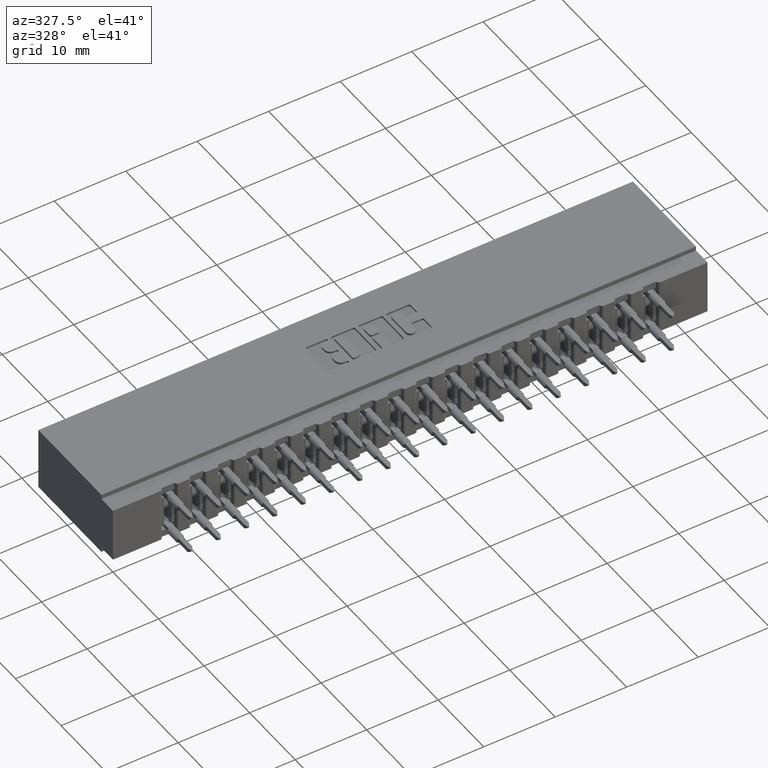
[diagram: clean part render]
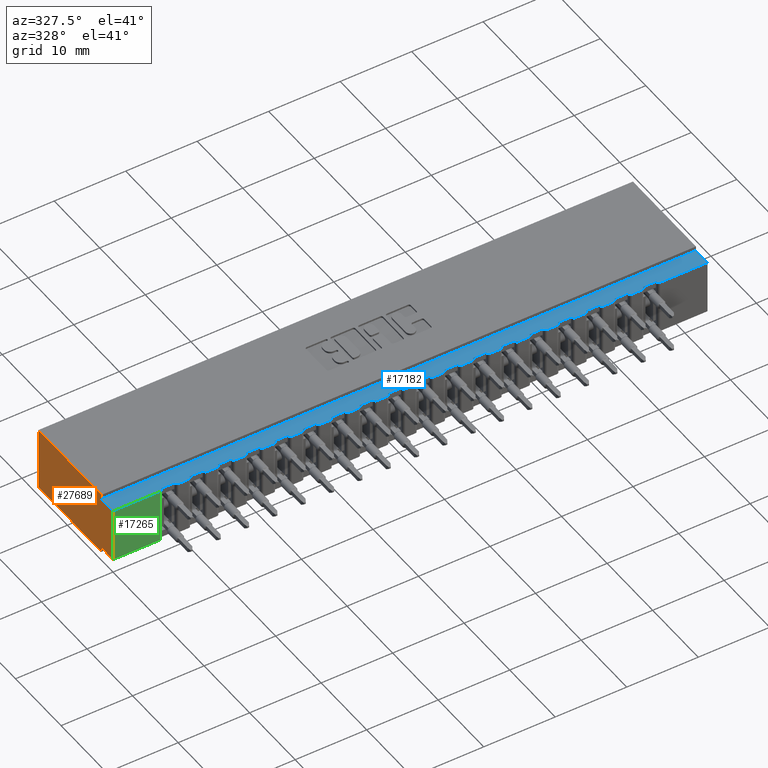
[diagram: same view with three faces highlighted in distinct colors, each labeled with its STEP entity id]
A machine part, auxiliary view with three faces highlighted in distinct colors.
Their STEP definitions:

[orange] entity #27689 — the highlighted planar face has unit normal (1, 0, 0).
#1000 = EDGE_CURVE ( 'NONE', #14101, #30119, #16599, .T. ) ;
#1789 = DIRECTION ( 'NONE',  ( -0.0000000000000000000, -1.000000000000000000, -0.0000000000000000000 ) ) ;
#2424 = LINE ( 'NONE', #31469, #23523 ) ;
#2465 = CARTESIAN_POINT ( 'NONE',  ( 0.0000000000000000000, 0.0000000000000000000, -0.02500000000000000486 ) ) ;
#2502 = DIRECTION ( 'NONE',  ( 0.0000000000000000000, 1.000000000000000000, 0.0000000000000000000 ) ) ;
#2623 = CARTESIAN_POINT ( 'NONE',  ( 0.0000000000000000000, 0.6449999999999999067, 0.0000000000000000000 ) ) ;
#3711 = ORIENTED_EDGE ( 'NONE', *, *, #24455, .F. ) ;
#3777 = ORIENTED_EDGE ( 'NONE', *, *, #1000, .F. ) ;
#5182 = AXIS2_PLACEMENT_3D ( 'NONE', #2623, #20771, #23678 ) ;
#6314 = EDGE_CURVE ( 'NONE', #21454, #13313, #2424, .T. ) ;
#6968 = EDGE_CURVE ( 'NONE', #21090, #12050, #25816, .T. ) ;
#6995 = VECTOR ( 'NONE', #9003, 39.37007874015748143 ) ;
#7760 = CARTESIAN_POINT ( 'NONE',  ( 0.0000000000000000000, 0.6449999999999999067, -0.3499999999999999778 ) ) ;
#7871 = CARTESIAN_POINT ( 'NONE',  ( 0.0000000000000000000, 0.0000000000000000000, -0.3249999999999999556 ) ) ;
#8502 = VECTOR ( 'NONE', #20936, 39.37007874015748143 ) ;
#9003 = DIRECTION ( 'NONE',  ( -0.0000000000000000000, -1.000000000000000000, -0.0000000000000000000 ) ) ;
#9988 = EDGE_CURVE ( 'NONE', #12050, #13313, #13017, .T. ) ;
#10243 = PLANE ( 'NONE',  #5182 ) ;
#10439 = DIRECTION ( 'NONE',  ( 0.0000000000000000000, 0.0000000000000000000, -1.000000000000000000 ) ) ;
#10880 = DIRECTION ( 'NONE',  ( -0.0000000000000000000, -0.0000000000000000000, 1.000000000000000000 ) ) ;
#10966 = DIRECTION ( 'NONE',  ( -0.0000000000000000000, -0.0000000000000000000, -1.000000000000000000 ) ) ;
#12050 = VERTEX_POINT ( 'NONE', #23248 ) ;
#12130 = LINE ( 'NONE', #17112, #6995 ) ;
#12135 = CARTESIAN_POINT ( 'NONE',  ( 0.0000000000000000000, 0.6449999999999999067, 0.0000000000000000000 ) ) ;
#13000 = LINE ( 'NONE', #34097, #8502 ) ;
#13017 = LINE ( 'NONE', #2465, #22253 ) ;
#13313 = VERTEX_POINT ( 'NONE', #32850 ) ;
#13344 = CARTESIAN_POINT ( 'NONE',  ( 0.0000000000000000000, 0.0000000000000000000, -0.3249999999999999556 ) ) ;
#13844 = CARTESIAN_POINT ( 'NONE',  ( 0.0000000000000000000, 0.6449999999999999067, 0.0000000000000000000 ) ) ;
#14101 = VERTEX_POINT ( 'NONE', #7760 ) ;
#14798 = ORIENTED_EDGE ( 'NONE', *, *, #6968, .F. ) ;
#15091 = CARTESIAN_POINT ( 'NONE',  ( 0.0000000000000000000, 0.1000000000000000056, 0.0000000000000000000 ) ) ;
#16599 = LINE ( 'NONE', #13844, #32256 ) ;
#16754 = ORIENTED_EDGE ( 'NONE', *, *, #22343, .F. ) ;
#17112 = CARTESIAN_POINT ( 'NONE',  ( 0.0000000000000000000, 0.6449999999999999067, 0.0000000000000000000 ) ) ;
#17156 = CARTESIAN_POINT ( 'NONE',  ( 0.0000000000000000000, 0.1000000000000000056, -0.3249999999999999556 ) ) ;
#17466 = EDGE_LOOP ( 'NONE', ( #28972, #22732, #14798, #26044, #3777, #19995, #16754, #3711 ) ) ;
#19657 = EDGE_CURVE ( 'NONE', #30119, #21090, #12130, .T. ) ;
#19995 = ORIENTED_EDGE ( 'NONE', *, *, #25996, .T. ) ;
#20771 = DIRECTION ( 'NONE',  ( 1.000000000000000000, -0.0000000000000000000, 0.0000000000000000000 ) ) ;
#20936 = DIRECTION ( 'NONE',  ( -0.0000000000000000000, -1.000000000000000000, -0.0000000000000000000 ) ) ;
#21090 = VERTEX_POINT ( 'NONE', #32409 ) ;
#21454 = VERTEX_POINT ( 'NONE', #13344 ) ;
#21798 = VERTEX_POINT ( 'NONE', #23157 ) ;
#22253 = VECTOR ( 'NONE', #1789, 39.37007874015748143 ) ;
#22343 = EDGE_CURVE ( 'NONE', #24753, #21798, #27854, .T. ) ;
#22732 = ORIENTED_EDGE ( 'NONE', *, *, #9988, .F. ) ;
#23157 = CARTESIAN_POINT ( 'NONE',  ( 0.0000000000000000000, 0.1000000000000000056, -0.3499999999999999778 ) ) ;
#23248 = CARTESIAN_POINT ( 'NONE',  ( 0.0000000000000000000, 0.1000000000000000056, -0.02500000000000000486 ) ) ;
#23336 = FACE_OUTER_BOUND ( 'NONE', #17466, .T. ) ;
#23454 = CARTESIAN_POINT ( 'NONE',  ( 0.0000000000000000000, 0.1000000000000000056, -0.3499999999999999778 ) ) ;
#23523 = VECTOR ( 'NONE', #10880, 39.37007874015748143 ) ;
#23678 = DIRECTION ( 'NONE',  ( 0.0000000000000000000, 0.0000000000000000000, -1.000000000000000000 ) ) ;
#23862 = VECTOR ( 'NONE', #2502, 39.37007874015748143 ) ;
#24455 = EDGE_CURVE ( 'NONE', #21454, #24753, #26166, .T. ) ;
#24753 = VERTEX_POINT ( 'NONE', #17156 ) ;
#25816 = LINE ( 'NONE', #15091, #32936 ) ;
#25996 = EDGE_CURVE ( 'NONE', #14101, #21798, #13000, .T. ) ;
#26044 = ORIENTED_EDGE ( 'NONE', *, *, #19657, .F. ) ;
#26166 = LINE ( 'NONE', #7871, #23862 ) ;
#27689 = ADVANCED_FACE ( 'NONE', ( #23336 ), #10243, .F. ) ;
#27854 = LINE ( 'NONE', #23454, #28208 ) ;
#28208 = VECTOR ( 'NONE', #10966, 39.37007874015748143 ) ;
#28972 = ORIENTED_EDGE ( 'NONE', *, *, #6314, .T. ) ;
#29930 = DIRECTION ( 'NONE',  ( -0.0000000000000000000, -0.0000000000000000000, 1.000000000000000000 ) ) ;
#30119 = VERTEX_POINT ( 'NONE', #12135 ) ;
#31469 = CARTESIAN_POINT ( 'NONE',  ( 0.0000000000000000000, 0.0000000000000000000, 0.0000000000000000000 ) ) ;
#32256 = VECTOR ( 'NONE', #29930, 39.37007874015748143 ) ;
#32409 = CARTESIAN_POINT ( 'NONE',  ( 0.0000000000000000000, 0.1000000000000000056, 0.0000000000000000000 ) ) ;
#32850 = CARTESIAN_POINT ( 'NONE',  ( 0.0000000000000000000, 0.0000000000000000000, -0.02500000000000000486 ) ) ;
#32936 = VECTOR ( 'NONE', #10439, 39.37007874015748143 ) ;
#34097 = CARTESIAN_POINT ( 'NONE',  ( 0.0000000000000000000, 0.6449999999999999067, -0.3499999999999999778 ) ) ;

[blue] entity #17182 — the highlighted planar face has unit normal (0, 0, -1).
#12 = CARTESIAN_POINT ( 'NONE',  ( 1.594999999999999751, 0.01499999999999997689, -0.02500000000000000486 ) ) ;
#64 = CARTESIAN_POINT ( 'NONE',  ( 0.5180000000000000160, 0.0000000000000000000, -0.02500000000000000486 ) ) ;
#84 = ORIENTED_EDGE ( 'NONE', *, *, #33243, .F. ) ;
#131 = DIRECTION ( 'NONE',  ( -1.000000000000000000, -0.0000000000000000000, -0.0000000000000000000 ) ) ;
#170 = EDGE_CURVE ( 'NONE', #24745, #10172, #32993, .T. ) ;
#191 = VERTEX_POINT ( 'NONE', #3565 ) ;
#264 = DIRECTION ( 'NONE',  ( 1.000000000000000000, 0.0000000000000000000, 0.0000000000000000000 ) ) ;
#299 = VERTEX_POINT ( 'NONE', #4767 ) ;
#342 = AXIS2_PLACEMENT_3D ( 'NONE', #18507, #34099, #18187 ) ;
#368 = VERTEX_POINT ( 'NONE', #27934 ) ;
#379 = CARTESIAN_POINT ( 'NONE',  ( 1.990999999999999881, 0.01499999999999997689, -0.02500000000000000486 ) ) ;
#413 = EDGE_CURVE ( 'NONE', #21575, #32062, #5445, .T. ) ;
#446 = EDGE_CURVE ( 'NONE', #29357, #12050, #31890, .T. ) ;
#569 = DIRECTION ( 'NONE',  ( 0.0000000000000000000, -0.0000000000000000000, -1.000000000000000000 ) ) ;
#699 = DIRECTION ( 'NONE',  ( 0.0000000000000000000, -0.0000000000000000000, -1.000000000000000000 ) ) ;
#701 = CARTESIAN_POINT ( 'NONE',  ( 1.210999999999999854, 0.01499999999999997689, -0.02500000000000000486 ) ) ;
#765 = VECTOR ( 'NONE', #33686, 39.37007874015748143 ) ;
#794 = ORIENTED_EDGE ( 'NONE', *, *, #11910, .T. ) ;
#807 = LINE ( 'NONE', #15861, #8779 ) ;
#869 = CARTESIAN_POINT ( 'NONE',  ( 0.2899999999999999800, 0.01499999999999999424, -0.02499999999999982445 ) ) ;
#874 = AXIS2_PLACEMENT_3D ( 'NONE', #16246, #18066, #27133 ) ;
#899 = LINE ( 'NONE', #14029, #9289 ) ;
#927 = AXIS2_PLACEMENT_3D ( 'NONE', #16047, #24172, #3266 ) ;
#944 = CARTESIAN_POINT ( 'NONE',  ( 1.141999999999999904, 0.0000000000000000000, -0.02500000000000000486 ) ) ;
#976 = DIRECTION ( 'NONE',  ( 0.0000000000000000000, -0.0000000000000000000, -1.000000000000000000 ) ) ;
#984 = LINE ( 'NONE', #14456, #12099 ) ;
#1086 = ORIENTED_EDGE ( 'NONE', *, *, #19897, .F. ) ;
#1100 = LINE ( 'NONE', #16639, #32057 ) ;
#1117 = ORIENTED_EDGE ( 'NONE', *, *, #18322, .T. ) ;
#1210 = CARTESIAN_POINT ( 'NONE',  ( 1.819999999999999618, 0.01499999999999997689, -0.02500000000000000486 ) ) ;
#1282 = CARTESIAN_POINT ( 'NONE',  ( 1.225999999999999979, 0.01499999999999999424, -0.02499999999999982445 ) ) ;
#1332 = VERTEX_POINT ( 'NONE', #11364 ) ;
#1354 = VECTOR ( 'NONE', #2470, 39.37007874015748143 ) ;
#1376 = DIRECTION ( 'NONE',  ( 0.0000000000000000000, -0.0000000000000000000, -1.000000000000000000 ) ) ;
#1390 = LINE ( 'NONE', #25237, #19111 ) ;
#1401 = EDGE_CURVE ( 'NONE', #4861, #19997, #32288, .T. ) ;
#1415 = DIRECTION ( 'NONE',  ( 1.000000000000000000, 0.0000000000000000000, 0.0000000000000000000 ) ) ;
#1573 = CARTESIAN_POINT ( 'NONE',  ( 0.6590000000000000302, 0.01499999999999997689, -0.02500000000000000486 ) ) ;
#1619 = CARTESIAN_POINT ( 'NONE',  ( 2.546000000000000263, 0.01499999999999997689, -0.02500000000000000486 ) ) ;
#1697 = DIRECTION ( 'NONE',  ( 1.000000000000000000, -0.0000000000000000000, -2.307304048702925122E-16 ) ) ;
#1787 = ORIENTED_EDGE ( 'NONE', *, *, #20901, .T. ) ;
#1789 = DIRECTION ( 'NONE',  ( -0.0000000000000000000, -1.000000000000000000, -0.0000000000000000000 ) ) ;
#1929 = CIRCLE ( 'NONE', #20652, 0.01499999999999997689 ) ;
#2071 = DIRECTION ( 'NONE',  ( 1.000000000000000000, 0.0000000000000000000, 0.0000000000000000000 ) ) ;
#2114 = ORIENTED_EDGE ( 'NONE', *, *, #30322, .F. ) ;
#2128 = EDGE_CURVE ( 'NONE', #21459, #3369, #32220, .T. ) ;
#2169 = DIRECTION ( 'NONE',  ( -0.0000000000000000000, 0.0000000000000000000, 1.000000000000000000 ) ) ;
#2232 = LINE ( 'NONE', #21036, #765 ) ;
#2250 = VERTEX_POINT ( 'NONE', #944 ) ;
#2299 = EDGE_CURVE ( 'NONE', #7115, #4963, #9427, .T. ) ;
#2358 = ORIENTED_EDGE ( 'NONE', *, *, #21048, .T. ) ;
#2399 = ORIENTED_EDGE ( 'NONE', *, *, #8854, .F. ) ;
#2465 = CARTESIAN_POINT ( 'NONE',  ( 0.0000000000000000000, 0.0000000000000000000, -0.02500000000000000486 ) ) ;
#2470 = DIRECTION ( 'NONE',  ( 1.000000000000000000, -0.0000000000000000000, -2.307304048702925122E-16 ) ) ;
#2488 = AXIS2_PLACEMENT_3D ( 'NONE', #19458, #976, #6340 ) ;
#2508 = LINE ( 'NONE', #13213, #27121 ) ;
#2517 = VERTEX_POINT ( 'NONE', #31683 ) ;
#2671 = VERTEX_POINT ( 'NONE', #9858 ) ;
#2973 = ORIENTED_EDGE ( 'NONE', *, *, #21261, .T. ) ;
#2979 = ORIENTED_EDGE ( 'NONE', *, *, #30643, .F. ) ;
#3104 = EDGE_CURVE ( 'NONE', #20784, #13853, #21826, .T. ) ;
#3136 = AXIS2_PLACEMENT_3D ( 'NONE', #30924, #15690, #2071 ) ;
#3209 = EDGE_CURVE ( 'NONE', #5363, #7830, #10482, .T. ) ;
#3238 = VERTEX_POINT ( 'NONE', #26192 ) ;
#3247 = EDGE_CURVE ( 'NONE', #18712, #14506, #17457, .T. ) ;
#3266 = DIRECTION ( 'NONE',  ( 1.000000000000000000, 0.0000000000000000000, 0.0000000000000000000 ) ) ;
#3333 = EDGE_CURVE ( 'NONE', #32667, #3238, #16486, .T. ) ;
#3365 = CARTESIAN_POINT ( 'NONE',  ( 2.858000000000000096, 0.0000000000000000000, -0.02500000000000000486 ) ) ;
#3369 = VERTEX_POINT ( 'NONE', #17015 ) ;
#3430 = EDGE_CURVE ( 'NONE', #21278, #8784, #9789, .T. ) ;
#3540 = CARTESIAN_POINT ( 'NONE',  ( 2.287999999999999812, 0.01499999999999997689, -0.02500000000000000486 ) ) ;
#3565 = CARTESIAN_POINT ( 'NONE',  ( 2.770999999999999908, 0.01499999999999997689, -0.02500000000000000486 ) ) ;
#3588 = ORIENTED_EDGE ( 'NONE', *, *, #3209, .F. ) ;
#3640 = AXIS2_PLACEMENT_3D ( 'NONE', #14974, #33491, #14643 ) ;
#3674 = VERTEX_POINT ( 'NONE', #26835 ) ;
#3735 = EDGE_CURVE ( 'NONE', #15691, #7068, #8219, .T. ) ;
#3795 = CARTESIAN_POINT ( 'NONE',  ( 1.834999999999999742, 0.01499999999999997689, -0.02500000000000000486 ) ) ;
#3820 = ORIENTED_EDGE ( 'NONE', *, *, #9959, .T. ) ;
#3858 = VERTEX_POINT ( 'NONE', #15890 ) ;
#3895 = EDGE_CURVE ( 'NONE', #29357, #7502, #13457, .T. ) ;
#3897 = VERTEX_POINT ( 'NONE', #5677 ) ;
#3915 = VERTEX_POINT ( 'NONE', #23816 ) ;
#4041 = DIRECTION ( 'NONE',  ( -1.000000000000000000, -0.0000000000000000000, -0.0000000000000000000 ) ) ;
#4051 = DIRECTION ( 'NONE',  ( 1.000000000000000000, -0.0000000000000000000, -2.307304048702925122E-16 ) ) ;
#4066 = DIRECTION ( 'NONE',  ( -0.0000000000000000000, 0.0000000000000000000, 1.000000000000000000 ) ) ;
#4134 = CARTESIAN_POINT ( 'NONE',  ( 0.8989999999999999103, 0.01499999999999997689, -0.02500000000000000486 ) ) ;
#4142 = CARTESIAN_POINT ( 'NONE',  ( 0.7429999999999999938, 0.01499999999999997689, -0.02500000000000000486 ) ) ;
#4192 = CARTESIAN_POINT ( 'NONE',  ( 2.146999999999999797, 0.01499999999999997689, -0.02500000000000000486 ) ) ;
#4290 = ORIENTED_EDGE ( 'NONE', *, *, #13680, .F. ) ;
#4401 = DIRECTION ( 'NONE',  ( -0.0000000000000000000, 0.0000000000000000000, 1.000000000000000000 ) ) ;
#4416 = VECTOR ( 'NONE', #4051, 39.37007874015748143 ) ;
#4437 = VECTOR ( 'NONE', #15444, 39.37007874015748143 ) ;
#4660 = AXIS2_PLACEMENT_3D ( 'NONE', #9348, #1376, #25225 ) ;
#4767 = CARTESIAN_POINT ( 'NONE',  ( 1.522999999999999909, 0.01499999999999997689, -0.02500000000000000486 ) ) ;
#4808 = ORIENTED_EDGE ( 'NONE', *, *, #12865, .F. ) ;
#4861 = VERTEX_POINT ( 'NONE', #29976 ) ;
#4897 = CARTESIAN_POINT ( 'NONE',  ( 0.6019999999999998685, 0.01499999999999999424, -0.02499999999999982445 ) ) ;
#4963 = VERTEX_POINT ( 'NONE', #30163 ) ;
#4964 = LINE ( 'NONE', #20352, #21316 ) ;
#4969 = EDGE_CURVE ( 'NONE', #10516, #23368, #16937, .T. ) ;
#4984 = CARTESIAN_POINT ( 'NONE',  ( 3.274000000000000021, 0.0000000000000000000, -0.02500000000000000486 ) ) ;
#5062 = CARTESIAN_POINT ( 'NONE',  ( 2.785999999999999588, 0.01499999999999999424, -0.02499999999999982445 ) ) ;
#5121 = DIRECTION ( 'NONE',  ( 1.000000000000000000, 0.0000000000000000000, 0.0000000000000000000 ) ) ;
#5178 = CARTESIAN_POINT ( 'NONE',  ( 3.274000000000000021, 0.0000000000000000000, -0.02500000000000000486 ) ) ;
#5238 = EDGE_CURVE ( 'NONE', #21278, #13313, #899, .T. ) ;
#5249 = CARTESIAN_POINT ( 'NONE',  ( 1.678999999999999826, 0.01499999999999997689, -0.02500000000000000486 ) ) ;
#5278 = DIRECTION ( 'NONE',  ( 1.000000000000000000, 0.0000000000000000000, 0.0000000000000000000 ) ) ;
#5306 = CARTESIAN_POINT ( 'NONE',  ( 0.7579999999999998961, 0.01499999999999999424, -0.02499999999999982445 ) ) ;
#5347 = VERTEX_POINT ( 'NONE', #19384 ) ;
#5363 = VERTEX_POINT ( 'NONE', #11625 ) ;
#5370 = CARTESIAN_POINT ( 'NONE',  ( 3.274000000000000021, 0.0000000000000000000, -0.02500000000000000486 ) ) ;
#5445 = LINE ( 'NONE', #28946, #16749 ) ;
#5558 = EDGE_CURVE ( 'NONE', #7830, #22227, #16969, .T. ) ;
#5677 = CARTESIAN_POINT ( 'NONE',  ( 2.842999999999999527, 0.01499999999999997689, -0.02500000000000000486 ) ) ;
#5723 = CARTESIAN_POINT ( 'NONE',  ( 0.4459999999999999520, 0.01499999999999999424, -0.02499999999999982445 ) ) ;
#5768 = DIRECTION ( 'NONE',  ( 1.000000000000000000, -0.0000000000000000000, -2.307304048702925122E-16 ) ) ;
#5879 = EDGE_CURVE ( 'NONE', #22910, #33691, #6603, .T. ) ;
#6109 = DIRECTION ( 'NONE',  ( 1.000000000000000000, 0.0000000000000000000, 0.0000000000000000000 ) ) ;
#6220 = DIRECTION ( 'NONE',  ( -0.0000000000000000000, 0.0000000000000000000, 1.000000000000000000 ) ) ;
#6262 = DIRECTION ( 'NONE',  ( 1.000000000000000000, 0.0000000000000000000, 0.0000000000000000000 ) ) ;
#6281 = AXIS2_PLACEMENT_3D ( 'NONE', #18397, #28951, #5278 ) ;
#6340 = DIRECTION ( 'NONE',  ( 1.000000000000000000, 0.0000000000000000000, 0.0000000000000000000 ) ) ;
#6442 = CARTESIAN_POINT ( 'NONE',  ( 0.4160000000000000364, 0.0000000000000000000, -0.02500000000000000486 ) ) ;
#6492 = DIRECTION ( 'NONE',  ( 1.000000000000000000, 0.0000000000000000000, 0.0000000000000000000 ) ) ;
#6535 = CARTESIAN_POINT ( 'NONE',  ( 3.014000000000000234, 0.0000000000000000000, -0.02500000000000000486 ) ) ;
#6549 = VECTOR ( 'NONE', #20615, 39.37007874015748143 ) ;
#6580 = VERTEX_POINT ( 'NONE', #22939 ) ;
#6603 = CIRCLE ( 'NONE', #29195, 0.01499999999999997689 ) ;
#6672 = EDGE_CURVE ( 'NONE', #12551, #2671, #33838, .T. ) ;
#6776 = CARTESIAN_POINT ( 'NONE',  ( 1.819999999999999618, 0.0000000000000000000, -0.02500000000000000486 ) ) ;
#6884 = LINE ( 'NONE', #25364, #10220 ) ;
#6935 = VERTEX_POINT ( 'NONE', #34118 ) ;
#6948 = VECTOR ( 'NONE', #12710, 39.37007874015748143 ) ;
#7068 = VERTEX_POINT ( 'NONE', #29402 ) ;
#7115 = VERTEX_POINT ( 'NONE', #701 ) ;
#7189 = ORIENTED_EDGE ( 'NONE', *, *, #15357, .T. ) ;
#7292 = VERTEX_POINT ( 'NONE', #6776 ) ;
#7315 = CIRCLE ( 'NONE', #11721, 0.01499999999999997689 ) ;
#7345 = PLANE ( 'NONE',  #32310 ) ;
#7350 = CARTESIAN_POINT ( 'NONE',  ( 2.443999999999999950, 0.01499999999999997689, -0.02500000000000000486 ) ) ;
#7452 = CARTESIAN_POINT ( 'NONE',  ( 2.233999999999999542, 0.01499999999999997689, -0.02500000000000000486 ) ) ;
#7502 = VERTEX_POINT ( 'NONE', #5370 ) ;
#7549 = VECTOR ( 'NONE', #11952, 39.37007874015748143 ) ;
#7553 = CARTESIAN_POINT ( 'NONE',  ( 2.302999999999999936, 0.01499999999999997689, -0.02500000000000000486 ) ) ;
#7561 = VECTOR ( 'NONE', #19096, 39.37007874015748143 ) ;
#7657 = DIRECTION ( 'NONE',  ( 0.0000000000000000000, -0.0000000000000000000, -1.000000000000000000 ) ) ;
#7775 = VERTEX_POINT ( 'NONE', #4134 ) ;
#7830 = VERTEX_POINT ( 'NONE', #27779 ) ;
#7912 = CARTESIAN_POINT ( 'NONE',  ( 2.701999999999999957, 0.01499999999999997689, -0.02500000000000000486 ) ) ;
#7954 = ORIENTED_EDGE ( 'NONE', *, *, #11338, .T. ) ;
#8046 = EDGE_CURVE ( 'NONE', #20784, #10516, #2508, .T. ) ;
#8050 = CARTESIAN_POINT ( 'NONE',  ( 2.131999999999999673, 0.0000000000000000000, -0.02500000000000000486 ) ) ;
#8124 = ORIENTED_EDGE ( 'NONE', *, *, #22488, .F. ) ;
#8161 = ORIENTED_EDGE ( 'NONE', *, *, #18619, .T. ) ;
#8219 = CIRCLE ( 'NONE', #23656, 0.01499999999999997689 ) ;
#8247 = LINE ( 'NONE', #5306, #15161 ) ;
#8291 = ORIENTED_EDGE ( 'NONE', *, *, #17214, .F. ) ;
#8322 = ORIENTED_EDGE ( 'NONE', *, *, #32722, .T. ) ;
#8413 = DIRECTION ( 'NONE',  ( -0.0000000000000000000, 0.0000000000000000000, 1.000000000000000000 ) ) ;
#8419 = CIRCLE ( 'NONE', #24408, 0.01499999999999997689 ) ;
#8486 = EDGE_CURVE ( 'NONE', #11146, #1332, #14210, .T. ) ;
#8500 = CIRCLE ( 'NONE', #27804, 0.01499999999999970281 ) ;
#8569 = CARTESIAN_POINT ( 'NONE',  ( 3.274000000000000021, 0.0000000000000000000, -0.02500000000000000486 ) ) ;
#8621 = EDGE_CURVE ( 'NONE', #17320, #1332, #7315, .T. ) ;
#8626 = EDGE_CURVE ( 'NONE', #17058, #6935, #26604, .T. ) ;
#8704 = DIRECTION ( 'NONE',  ( 1.000000000000000000, -0.0000000000000000000, -2.307304048702925122E-16 ) ) ;
#8779 = VECTOR ( 'NONE', #131, 39.37007874015748143 ) ;
#8784 = VERTEX_POINT ( 'NONE', #20754 ) ;
#8835 = DIRECTION ( 'NONE',  ( 1.000000000000000000, -0.0000000000000000000, -2.307304048702925122E-16 ) ) ;
#8854 = EDGE_CURVE ( 'NONE', #2517, #12118, #16672, .T. ) ;
#9013 = AXIS2_PLACEMENT_3D ( 'NONE', #23942, #8413, #29314 ) ;
#9060 = VECTOR ( 'NONE', #33983, 39.37007874015748143 ) ;
#9181 = VERTEX_POINT ( 'NONE', #17758 ) ;
#9203 = CIRCLE ( 'NONE', #342, 0.01499999999999997689 ) ;
#9216 = CIRCLE ( 'NONE', #927, 0.01499999999999997689 ) ;
#9289 = VECTOR ( 'NONE', #13845, 39.37007874015748143 ) ;
#9291 = ORIENTED_EDGE ( 'NONE', *, *, #20400, .F. ) ;
#9348 = CARTESIAN_POINT ( 'NONE',  ( 1.453999999999999737, 0.01499999999999997689, -0.02500000000000000486 ) ) ;
#9421 = DIRECTION ( 'NONE',  ( -1.000000000000000000, -0.0000000000000000000, -0.0000000000000000000 ) ) ;
#9423 = EDGE_CURVE ( 'NONE', #13777, #7775, #13971, .T. ) ;
#9427 = LINE ( 'NONE', #1282, #27373 ) ;
#9564 = CARTESIAN_POINT ( 'NONE',  ( 3.274000000000000021, 0.0000000000000000000, -0.02500000000000000486 ) ) ;
#9595 = DIRECTION ( 'NONE',  ( 1.000000000000000000, -0.0000000000000000000, -2.307304048702925122E-16 ) ) ;
#9600 = LINE ( 'NONE', #9939, #15163 ) ;
#9601 = DIRECTION ( 'NONE',  ( -0.0000000000000000000, 0.0000000000000000000, 1.000000000000000000 ) ) ;
#9705 = ORIENTED_EDGE ( 'NONE', *, *, #17339, .F. ) ;
#9762 = DIRECTION ( 'NONE',  ( 1.000000000000000000, -0.0000000000000000000, -2.307304048702925122E-16 ) ) ;
#9786 = CARTESIAN_POINT ( 'NONE',  ( 3.274000000000000021, 0.0000000000000000000, -0.02500000000000000486 ) ) ;
#9789 = CIRCLE ( 'NONE', #16936, 0.01499999999999997689 ) ;
#9858 = CARTESIAN_POINT ( 'NONE',  ( 1.750999999999999890, 0.01499999999999997689, -0.02500000000000000486 ) ) ;
#9909 = LINE ( 'NONE', #9564, #18554 ) ;
#9937 = CARTESIAN_POINT ( 'NONE',  ( 0.9140000000000000346, 0.01499999999999999424, -0.02499999999999982445 ) ) ;
#9939 = CARTESIAN_POINT ( 'NONE',  ( 3.274000000000000021, 0.0000000000000000000, -0.02500000000000000486 ) ) ;
#9945 = CARTESIAN_POINT ( 'NONE',  ( 3.274000000000000021, 0.0000000000000000000, -0.02500000000000000486 ) ) ;
#9959 = EDGE_CURVE ( 'NONE', #19908, #13308, #28736, .T. ) ;
#9960 = LINE ( 'NONE', #31390, #11274 ) ;
#9988 = EDGE_CURVE ( 'NONE', #12050, #13313, #13017, .T. ) ;
#9993 = VECTOR ( 'NONE', #9421, 39.37007874015748143 ) ;
#10172 = VERTEX_POINT ( 'NONE', #379 ) ;
#10220 = VECTOR ( 'NONE', #1697, 39.37007874015748143 ) ;
#10251 = CIRCLE ( 'NONE', #18514, 0.01499999999999970281 ) ;
#10344 = DIRECTION ( 'NONE',  ( 1.000000000000000000, 0.0000000000000000000, 0.0000000000000000000 ) ) ;
#10375 = AXIS2_PLACEMENT_3D ( 'NONE', #16507, #24288, #32770 ) ;
#10482 = LINE ( 'NONE', #33811, #30183 ) ;
#10503 = AXIS2_PLACEMENT_3D ( 'NONE', #15104, #4401, #25644 ) ;
#10516 = VERTEX_POINT ( 'NONE', #15845 ) ;
#10630 = AXIS2_PLACEMENT_3D ( 'NONE', #15242, #7657, #33908 ) ;
#10700 = CARTESIAN_POINT ( 'NONE',  ( 3.274000000000000021, 0.0000000000000000000, -0.02500000000000000486 ) ) ;
#10814 = DIRECTION ( 'NONE',  ( -1.000000000000000000, -0.0000000000000000000, -0.0000000000000000000 ) ) ;
#10843 = EDGE_CURVE ( 'NONE', #13853, #32125, #9960, .T. ) ;
#10853 = CARTESIAN_POINT ( 'NONE',  ( 1.439000000000000057, 0.01499999999999997689, -0.02500000000000000486 ) ) ;
#10888 = DIRECTION ( 'NONE',  ( 1.000000000000000000, 0.0000000000000000000, 0.0000000000000000000 ) ) ;
#10976 = DIRECTION ( 'NONE',  ( -0.0000000000000000000, 0.0000000000000000000, 1.000000000000000000 ) ) ;
#11146 = VERTEX_POINT ( 'NONE', #14249 ) ;
#11263 = DIRECTION ( 'NONE',  ( 1.000000000000000000, 0.0000000000000000000, 0.0000000000000000000 ) ) ;
#11274 = VECTOR ( 'NONE', #12719, 39.37007874015748143 ) ;
#11279 = CARTESIAN_POINT ( 'NONE',  ( 2.459000000000000075, 0.01499999999999997689, -0.02500000000000000486 ) ) ;
#11338 = EDGE_CURVE ( 'NONE', #191, #3897, #28741, .T. ) ;
#11364 = CARTESIAN_POINT ( 'NONE',  ( 0.5030000000000000027, 0.01499999999999997689, -0.02500000000000000486 ) ) ;
#11375 = CARTESIAN_POINT ( 'NONE',  ( 2.755999999999999783, 0.0000000000000000000, -0.02500000000000000486 ) ) ;
#11418 = DIRECTION ( 'NONE',  ( 1.000000000000000000, 0.0000000000000000000, 0.0000000000000000000 ) ) ;
#11427 = CARTESIAN_POINT ( 'NONE',  ( 2.941999999999999726, 0.01499999999999999424, -0.02499999999999982445 ) ) ;
#11443 = CARTESIAN_POINT ( 'NONE',  ( 0.7279999999999999805, 0.01499999999999997689, -0.02500000000000000486 ) ) ;
#11512 = DIRECTION ( 'NONE',  ( -0.0000000000000000000, 0.0000000000000000000, 1.000000000000000000 ) ) ;
#11561 = ORIENTED_EDGE ( 'NONE', *, *, #10843, .T. ) ;
#11625 = CARTESIAN_POINT ( 'NONE',  ( 2.443999999999999950, 0.0000000000000000000, -0.02500000000000000486 ) ) ;
#11721 = AXIS2_PLACEMENT_3D ( 'NONE', #24374, #699, #11263 ) ;
#11753 = ORIENTED_EDGE ( 'NONE', *, *, #19643, .T. ) ;
#11758 = ORIENTED_EDGE ( 'NONE', *, *, #19068, .F. ) ;
#11793 = CIRCLE ( 'NONE', #6281, 0.01499999999999970281 ) ;
#11910 = EDGE_CURVE ( 'NONE', #17832, #3674, #13482, .T. ) ;
#11952 = DIRECTION ( 'NONE',  ( -1.000000000000000000, -0.0000000000000000000, -0.0000000000000000000 ) ) ;
#11956 = ORIENTED_EDGE ( 'NONE', *, *, #31623, .F. ) ;
#12009 = CIRCLE ( 'NONE', #3136, 0.01499999999999970281 ) ;
#12038 = ORIENTED_EDGE ( 'NONE', *, *, #9423, .T. ) ;
#12050 = VERTEX_POINT ( 'NONE', #23248 ) ;
#12064 = CARTESIAN_POINT ( 'NONE',  ( 0.3619999999999999885, 0.01499999999999997689, -0.02500000000000000486 ) ) ;
#12079 = ORIENTED_EDGE ( 'NONE', *, *, #13237, .F. ) ;
#12082 = EDGE_CURVE ( 'NONE', #16292, #17060, #20671, .T. ) ;
#12099 = VECTOR ( 'NONE', #14131, 39.37007874015748143 ) ;
#12113 = ORIENTED_EDGE ( 'NONE', *, *, #25754, .T. ) ;
#12118 = VERTEX_POINT ( 'NONE', #13388 ) ;
#12354 = DIRECTION ( 'NONE',  ( 1.000000000000000000, 0.0000000000000000000, 0.0000000000000000000 ) ) ;
#12360 = VECTOR ( 'NONE', #8704, 39.37007874015748143 ) ;
#12515 = CARTESIAN_POINT ( 'NONE',  ( 1.975999999999999979, 0.0000000000000000000, -0.02500000000000000486 ) ) ;
#12536 = ORIENTED_EDGE ( 'NONE', *, *, #29103, .T. ) ;
#12546 = DIRECTION ( 'NONE',  ( -1.000000000000000000, 0.0000000000000000000, -0.0000000000000000000 ) ) ;
#12551 = VERTEX_POINT ( 'NONE', #5249 ) ;
#12698 = LINE ( 'NONE', #9937, #4437 ) ;
#12710 = DIRECTION ( 'NONE',  ( -1.000000000000000000, -0.0000000000000000000, -0.0000000000000000000 ) ) ;
#12719 = DIRECTION ( 'NONE',  ( 1.000000000000000000, -0.0000000000000000000, -2.307304048702925122E-16 ) ) ;
#12808 = CARTESIAN_POINT ( 'NONE',  ( 0.5719999999999999529, 0.01499999999999997689, -0.02500000000000000486 ) ) ;
#12865 = EDGE_CURVE ( 'NONE', #22920, #22910, #9909, .T. ) ;
#12937 = DIRECTION ( 'NONE',  ( 0.0000000000000000000, -0.0000000000000000000, -1.000000000000000000 ) ) ;
#13017 = LINE ( 'NONE', #2465, #22253 ) ;
#13024 = EDGE_CURVE ( 'NONE', #2250, #32125, #9203, .T. ) ;
#13049 = AXIS2_PLACEMENT_3D ( 'NONE', #11443, #22474, #24881 ) ;
#13148 = DIRECTION ( 'NONE',  ( 1.000000000000000000, 0.0000000000000000000, 0.0000000000000000000 ) ) ;
#13213 = CARTESIAN_POINT ( 'NONE',  ( 3.274000000000000021, 0.0000000000000000000, -0.02500000000000000486 ) ) ;
#13237 = EDGE_CURVE ( 'NONE', #6580, #4861, #27643, .T. ) ;
#13281 = EDGE_CURVE ( 'NONE', #16272, #27654, #1390, .T. ) ;
#13285 = ORIENTED_EDGE ( 'NONE', *, *, #2128, .T. ) ;
#13308 = VERTEX_POINT ( 'NONE', #1573 ) ;
#13313 = VERTEX_POINT ( 'NONE', #32850 ) ;
#13388 = CARTESIAN_POINT ( 'NONE',  ( 0.8149999999999999467, 0.01499999999999997689, -0.02500000000000000486 ) ) ;
#13457 = LINE ( 'NONE', #5178, #19825 ) ;
#13482 = LINE ( 'NONE', #11427, #25141 ) ;
#13676 = ORIENTED_EDGE ( 'NONE', *, *, #24630, .F. ) ;
#13680 = EDGE_CURVE ( 'NONE', #27930, #2671, #21632, .T. ) ;
#13777 = VERTEX_POINT ( 'NONE', #24691 ) ;
#13782 = ORIENTED_EDGE ( 'NONE', *, *, #20254, .T. ) ;
#13818 = DIRECTION ( 'NONE',  ( 1.000000000000000000, 0.0000000000000000000, 0.0000000000000000000 ) ) ;
#13845 = DIRECTION ( 'NONE',  ( -1.000000000000000000, -0.0000000000000000000, -0.0000000000000000000 ) ) ;
#13853 = VERTEX_POINT ( 'NONE', #19167 ) ;
#13971 = CIRCLE ( 'NONE', #9013, 0.01499999999999997689 ) ;
#14026 = CARTESIAN_POINT ( 'NONE',  ( 0.3619999999999999885, 0.0000000000000000000, -0.02500000000000000486 ) ) ;
#14029 = CARTESIAN_POINT ( 'NONE',  ( 3.274000000000000021, 0.0000000000000000000, -0.02500000000000000486 ) ) ;
#14131 = DIRECTION ( 'NONE',  ( -1.000000000000000000, -0.0000000000000000000, -0.0000000000000000000 ) ) ;
#14140 = ORIENTED_EDGE ( 'NONE', *, *, #21286, .T. ) ;
#14154 = CIRCLE ( 'NONE', #29623, 0.01499999999999997689 ) ;
#14184 = CARTESIAN_POINT ( 'NONE',  ( 2.755999999999999783, 0.01499999999999997689, -0.02500000000000000486 ) ) ;
#14210 = LINE ( 'NONE', #5723, #32690 ) ;
#14249 = CARTESIAN_POINT ( 'NONE',  ( 0.4309999999999999942, 0.01499999999999997689, -0.02500000000000000486 ) ) ;
#14440 = ORIENTED_EDGE ( 'NONE', *, *, #446, .T. ) ;
#14456 = CARTESIAN_POINT ( 'NONE',  ( 3.274000000000000021, 0.0000000000000000000, -0.02500000000000000486 ) ) ;
#14471 = CARTESIAN_POINT ( 'NONE',  ( 1.195999999999999952, 0.0000000000000000000, -0.02500000000000000486 ) ) ;
#14506 = VERTEX_POINT ( 'NONE', #7553 ) ;
#14516 = ORIENTED_EDGE ( 'NONE', *, *, #3430, .T. ) ;
#14521 = DIRECTION ( 'NONE',  ( 1.000000000000000000, 0.0000000000000000000, 0.0000000000000000000 ) ) ;
#14565 = ORIENTED_EDGE ( 'NONE', *, *, #20439, .F. ) ;
#14643 = DIRECTION ( 'NONE',  ( 1.000000000000000000, 0.0000000000000000000, 0.0000000000000000000 ) ) ;
#14758 = EDGE_CURVE ( 'NONE', #16272, #5347, #11793, .T. ) ;
#14974 = CARTESIAN_POINT ( 'NONE',  ( 1.039999999999999813, 0.01499999999999997689, -0.02500000000000000486 ) ) ;
#15104 = CARTESIAN_POINT ( 'NONE',  ( 2.131999999999999673, 0.01499999999999997689, -0.02500000000000000486 ) ) ;
#15141 = ORIENTED_EDGE ( 'NONE', *, *, #3104, .T. ) ;
#15145 = EDGE_CURVE ( 'NONE', #32997, #13308, #25626, .T. ) ;
#15161 = VECTOR ( 'NONE', #31920, 39.37007874015748143 ) ;
#15163 = VECTOR ( 'NONE', #28077, 39.37007874015748143 ) ;
#15242 = CARTESIAN_POINT ( 'NONE',  ( 1.765999999999999792, 0.01499999999999997689, -0.02500000000000000486 ) ) ;
#15255 = EDGE_CURVE ( 'NONE', #3238, #33301, #22849, .T. ) ;
#15299 = DIRECTION ( 'NONE',  ( 1.000000000000000000, 0.0000000000000000000, 0.0000000000000000000 ) ) ;
#15309 = ORIENTED_EDGE ( 'NONE', *, *, #9988, .T. ) ;
#15327 = VERTEX_POINT ( 'NONE', #4142 ) ;
#15357 = EDGE_CURVE ( 'NONE', #5347, #20402, #2232, .T. ) ;
#15444 = DIRECTION ( 'NONE',  ( 1.000000000000000000, -0.0000000000000000000, -2.307304048702925122E-16 ) ) ;
#15458 = CARTESIAN_POINT ( 'NONE',  ( 2.287999999999999812, 0.0000000000000000000, -0.02500000000000000486 ) ) ;
#15554 = CARTESIAN_POINT ( 'NONE',  ( 0.8299999999999998490, 0.01499999999999997689, -0.02500000000000000486 ) ) ;
#15557 = CARTESIAN_POINT ( 'NONE',  ( 1.906999999999999584, 0.01499999999999997689, -0.02500000000000000486 ) ) ;
#15602 = CIRCLE ( 'NONE', #22195, 0.01499999999999997689 ) ;
#15690 = DIRECTION ( 'NONE',  ( 0.0000000000000000000, -0.0000000000000000000, -1.000000000000000000 ) ) ;
#15691 = VERTEX_POINT ( 'NONE', #22407 ) ;
#15705 = ORIENTED_EDGE ( 'NONE', *, *, #3333, .F. ) ;
#15758 = AXIS2_PLACEMENT_3D ( 'NONE', #21358, #28797, #5121 ) ;
#15779 = CIRCLE ( 'NONE', #874, 0.01499999999999997689 ) ;
#15845 = CARTESIAN_POINT ( 'NONE',  ( 0.9859999999999999876, 0.0000000000000000000, -0.02500000000000000486 ) ) ;
#15861 = CARTESIAN_POINT ( 'NONE',  ( 3.274000000000000021, 0.0000000000000000000, -0.02500000000000000486 ) ) ;
#15890 = CARTESIAN_POINT ( 'NONE',  ( 1.297999999999999821, 0.0000000000000000000, -0.02500000000000000486 ) ) ;
#15923 = EDGE_CURVE ( 'NONE', #7502, #20769, #9600, .T. ) ;
#15947 = DIRECTION ( 'NONE',  ( 1.000000000000000000, 0.0000000000000000000, 0.0000000000000000000 ) ) ;
#16047 = CARTESIAN_POINT ( 'NONE',  ( 0.4160000000000000364, 0.01499999999999997689, -0.02500000000000000486 ) ) ;
#16057 = ORIENTED_EDGE ( 'NONE', *, *, #15145, .F. ) ;
#16143 = DIRECTION ( 'NONE',  ( 1.000000000000000000, -0.0000000000000000000, -2.307304048702925122E-16 ) ) ;
#16246 = CARTESIAN_POINT ( 'NONE',  ( 1.663999999999999702, 0.01499999999999997689, -0.02500000000000000486 ) ) ;
#16272 = VERTEX_POINT ( 'NONE', #22320 ) ;
#16275 = CIRCLE ( 'NONE', #15758, 0.01499999999999997689 ) ;
#16283 = DIRECTION ( 'NONE',  ( 0.0000000000000000000, -0.0000000000000000000, -1.000000000000000000 ) ) ;
#16292 = VERTEX_POINT ( 'NONE', #24392 ) ;
#16349 = CARTESIAN_POINT ( 'NONE',  ( 2.218999999999999861, 0.01499999999999997689, -0.02500000000000000486 ) ) ;
#16376 = LINE ( 'NONE', #10700, #29062 ) ;
#16379 = VERTEX_POINT ( 'NONE', #20084 ) ;
#16486 = LINE ( 'NONE', #8569, #7561 ) ;
#16507 = CARTESIAN_POINT ( 'NONE',  ( 1.975999999999999979, 0.01499999999999997689, -0.02500000000000000486 ) ) ;
#16639 = CARTESIAN_POINT ( 'NONE',  ( 3.274000000000000021, 0.0000000000000000000, -0.02500000000000000486 ) ) ;
#16672 = CIRCLE ( 'NONE', #31059, 0.01499999999999997689 ) ;
#16694 = VERTEX_POINT ( 'NONE', #27594 ) ;
#16749 = VECTOR ( 'NONE', #18735, 39.37007874015748143 ) ;
#16803 = ORIENTED_EDGE ( 'NONE', *, *, #19442, .F. ) ;
#16873 = ORIENTED_EDGE ( 'NONE', *, *, #1401, .F. ) ;
#16935 = CARTESIAN_POINT ( 'NONE',  ( 1.765999999999999792, 0.0000000000000000000, -0.02500000000000000486 ) ) ;
#16936 = AXIS2_PLACEMENT_3D ( 'NONE', #17697, #9601, #12354 ) ;
#16937 = CIRCLE ( 'NONE', #21344, 0.01499999999999997689 ) ;
#16969 = CIRCLE ( 'NONE', #21369, 0.01499999999999997689 ) ;
#17015 = CARTESIAN_POINT ( 'NONE',  ( 2.530999999999999694, 0.01499999999999997689, -0.02500000000000000486 ) ) ;
#17058 = VERTEX_POINT ( 'NONE', #27043 ) ;
#17060 = VERTEX_POINT ( 'NONE', #3365 ) ;
#17182 = ADVANCED_FACE ( 'NONE', ( #33620 ), #7345, .F. ) ;
#17205 = DIRECTION ( 'NONE',  ( 0.0000000000000000000, -0.0000000000000000000, -1.000000000000000000 ) ) ;
#17214 = EDGE_CURVE ( 'NONE', #18179, #2250, #17864, .T. ) ;
#17320 = VERTEX_POINT ( 'NONE', #64 ) ;
#17328 = AXIS2_PLACEMENT_3D ( 'NONE', #27291, #29725, #11418 ) ;
#17339 = EDGE_CURVE ( 'NONE', #3858, #4963, #1929, .T. ) ;
#17345 = DIRECTION ( 'NONE',  ( 0.0000000000000000000, -0.0000000000000000000, -1.000000000000000000 ) ) ;
#17457 = CIRCLE ( 'NONE', #30721, 0.01499999999999997689 ) ;
#17647 = LINE ( 'NONE', #22652, #26845 ) ;
#17688 = CARTESIAN_POINT ( 'NONE',  ( 0.9859999999999999876, 0.01499999999999997689, -0.02500000000000000486 ) ) ;
#17697 = CARTESIAN_POINT ( 'NONE',  ( 0.2600000000000000089, 0.01499999999999997689, -0.02500000000000000486 ) ) ;
#17758 = CARTESIAN_POINT ( 'NONE',  ( 2.233999999999999542, 0.0000000000000000000, -0.02500000000000000486 ) ) ;
#17832 = VERTEX_POINT ( 'NONE', #20053 ) ;
#17851 = VECTOR ( 'NONE', #9762, 39.37007874015748143 ) ;
#17864 = LINE ( 'NONE', #9945, #20185 ) ;
#17977 = DIRECTION ( 'NONE',  ( 1.000000000000000000, 0.0000000000000000000, 0.0000000000000000000 ) ) ;
#17979 = AXIS2_PLACEMENT_3D ( 'NONE', #1619, #33245, #22846 ) ;
#17995 = DIRECTION ( 'NONE',  ( -0.0000000000000000000, 0.0000000000000000000, 1.000000000000000000 ) ) ;
#18057 = DIRECTION ( 'NONE',  ( -1.000000000000000000, -0.0000000000000000000, -0.0000000000000000000 ) ) ;
#18066 = DIRECTION ( 'NONE',  ( -0.0000000000000000000, 0.0000000000000000000, 1.000000000000000000 ) ) ;
#18116 = CARTESIAN_POINT ( 'NONE',  ( 1.693999999999999950, 0.01499999999999999424, -0.02499999999999982445 ) ) ;
#18179 = VERTEX_POINT ( 'NONE', #14471 ) ;
#18187 = DIRECTION ( 'NONE',  ( 1.000000000000000000, 0.0000000000000000000, 0.0000000000000000000 ) ) ;
#18322 = EDGE_CURVE ( 'NONE', #15327, #12118, #8247, .T. ) ;
#18397 = CARTESIAN_POINT ( 'NONE',  ( 2.600000000000000089, 0.01499999999999997689, -0.02500000000000000486 ) ) ;
#18435 = EDGE_CURVE ( 'NONE', #18179, #7115, #16275, .T. ) ;
#18460 = ORIENTED_EDGE ( 'NONE', *, *, #15923, .F. ) ;
#18507 = CARTESIAN_POINT ( 'NONE',  ( 1.141999999999999904, 0.01499999999999997689, -0.02500000000000000486 ) ) ;
#18514 = AXIS2_PLACEMENT_3D ( 'NONE', #31022, #2169, #27918 ) ;
#18554 = VECTOR ( 'NONE', #30820, 39.37007874015748143 ) ;
#18619 = EDGE_CURVE ( 'NONE', #16292, #17832, #10251, .T. ) ;
#18665 = EDGE_CURVE ( 'NONE', #33337, #368, #33786, .T. ) ;
#18712 = VERTEX_POINT ( 'NONE', #15458 ) ;
#18735 = DIRECTION ( 'NONE',  ( 1.000000000000000000, -0.0000000000000000000, -2.307304048702925122E-16 ) ) ;
#18754 = DIRECTION ( 'NONE',  ( -1.000000000000000000, -0.0000000000000000000, -0.0000000000000000000 ) ) ;
#18849 = ORIENTED_EDGE ( 'NONE', *, *, #26979, .T. ) ;
#18912 = CARTESIAN_POINT ( 'NONE',  ( 1.538000000000000034, 0.01499999999999999424, -0.02499999999999982445 ) ) ;
#19068 = EDGE_CURVE ( 'NONE', #27654, #3369, #32338, .T. ) ;
#19080 = CARTESIAN_POINT ( 'NONE',  ( 2.374999999999999556, 0.01499999999999997689, -0.02500000000000000486 ) ) ;
#19096 = DIRECTION ( 'NONE',  ( -1.000000000000000000, -0.0000000000000000000, -0.0000000000000000000 ) ) ;
#19111 = VECTOR ( 'NONE', #25044, 39.37007874015748143 ) ;
#19167 = CARTESIAN_POINT ( 'NONE',  ( 1.054999999999999716, 0.01499999999999997689, -0.02500000000000000486 ) ) ;
#19194 = LINE ( 'NONE', #869, #26263 ) ;
#19384 = CARTESIAN_POINT ( 'NONE',  ( 2.614999999999999769, 0.01499999999999997689, -0.02500000000000000486 ) ) ;
#19411 = CARTESIAN_POINT ( 'NONE',  ( 1.921999999999999931, 0.01499999999999997689, -0.02500000000000000486 ) ) ;
#19442 = EDGE_CURVE ( 'NONE', #18712, #9181, #4964, .T. ) ;
#19458 = CARTESIAN_POINT ( 'NONE',  ( 1.610000000000000098, 0.01499999999999997689, -0.02500000000000000486 ) ) ;
#19508 = CARTESIAN_POINT ( 'NONE',  ( 0.3470000000000000306, 0.01499999999999997689, -0.02500000000000000486 ) ) ;
#19548 = ORIENTED_EDGE ( 'NONE', *, *, #3247, .T. ) ;
#19643 = EDGE_CURVE ( 'NONE', #3915, #15327, #25176, .T. ) ;
#19684 = EDGE_CURVE ( 'NONE', #7292, #32987, #22980, .T. ) ;
#19765 = ORIENTED_EDGE ( 'NONE', *, *, #29723, .T. ) ;
#19825 = VECTOR ( 'NONE', #28702, 39.37007874015748143 ) ;
#19878 = CARTESIAN_POINT ( 'NONE',  ( 3.274000000000000021, 0.0000000000000000000, -0.02500000000000000486 ) ) ;
#19884 = DIRECTION ( 'NONE',  ( -0.0000000000000000000, 0.0000000000000000000, 1.000000000000000000 ) ) ;
#19897 = EDGE_CURVE ( 'NONE', #16379, #17320, #17647, .T. ) ;
#19908 = VERTEX_POINT ( 'NONE', #25077 ) ;
#19997 = VERTEX_POINT ( 'NONE', #12 ) ;
#20053 = CARTESIAN_POINT ( 'NONE',  ( 2.927000000000000046, 0.01499999999999997689, -0.02500000000000000486 ) ) ;
#20084 = CARTESIAN_POINT ( 'NONE',  ( 0.5719999999999999529, 0.0000000000000000000, -0.02500000000000000486 ) ) ;
#20121 = ORIENTED_EDGE ( 'NONE', *, *, #14758, .T. ) ;
#20185 = VECTOR ( 'NONE', #18057, 39.37007874015748143 ) ;
#20254 = EDGE_CURVE ( 'NONE', #22920, #11146, #9216, .T. ) ;
#20352 = CARTESIAN_POINT ( 'NONE',  ( 3.274000000000000021, 0.0000000000000000000, -0.02500000000000000486 ) ) ;
#20400 = EDGE_CURVE ( 'NONE', #31052, #15691, #33849, .T. ) ;
#20402 = VERTEX_POINT ( 'NONE', #28145 ) ;
#20439 = EDGE_CURVE ( 'NONE', #20769, #3674, #12009, .T. ) ;
#20615 = DIRECTION ( 'NONE',  ( 1.000000000000000000, -0.0000000000000000000, -2.307304048702925122E-16 ) ) ;
#20652 = AXIS2_PLACEMENT_3D ( 'NONE', #21129, #16283, #15947 ) ;
#20671 = LINE ( 'NONE', #28634, #27910 ) ;
#20677 = ORIENTED_EDGE ( 'NONE', *, *, #8626, .T. ) ;
#20754 = CARTESIAN_POINT ( 'NONE',  ( 0.2749999999999999667, 0.01499999999999997689, -0.02500000000000000486 ) ) ;
#20769 = VERTEX_POINT ( 'NONE', #6535 ) ;
#20784 = VERTEX_POINT ( 'NONE', #27583 ) ;
#20823 = EDGE_LOOP ( 'NONE', ( #794, #14565, #18460, #29820, #14440, #15309, #22979, #14516, #12536, #26503, #4808, #13782, #22323, #21635, #1086, #22778, #3820, #16057, #27321, #11753, #1117, #2399, #2114, #12038, #2973, #30069, #28678, #15141, #11561, #24089, #8291, #27912, #29771, #9705, #8124, #20677, #2358, #31657, #15705, #1787, #18849, #16873, #12079, #25483, #23674, #4290, #84, #22484, #8322, #13676, #28996, #28699, #21887, #32520, #9291, #14140, #23479, #22741, #16803, #19548, #12113, #21540, #3588, #19765, #13285, #11758, #31769, #20121, #7189, #2979, #25617, #29323, #7954, #11956, #27032, #8161 ) ) ;
#20901 = EDGE_CURVE ( 'NONE', #32667, #299, #15602, .T. ) ;
#21036 = CARTESIAN_POINT ( 'NONE',  ( 2.629999999999999449, 0.01499999999999999424, -0.02499999999999982445 ) ) ;
#21048 = EDGE_CURVE ( 'NONE', #6935, #33301, #29642, .T. ) ;
#21129 = CARTESIAN_POINT ( 'NONE',  ( 1.297999999999999821, 0.01499999999999997689, -0.02500000000000000486 ) ) ;
#21244 = CARTESIAN_POINT ( 'NONE',  ( 2.858000000000000096, 0.01499999999999997689, -0.02500000000000000486 ) ) ;
#21261 = EDGE_CURVE ( 'NONE', #7775, #23368, #12698, .T. ) ;
#21278 = VERTEX_POINT ( 'NONE', #30851 ) ;
#21286 = EDGE_CURVE ( 'NONE', #31052, #21575, #30915, .T. ) ;
#21304 = CARTESIAN_POINT ( 'NONE',  ( 2.078000000000000291, 0.01499999999999997689, -0.02500000000000000486 ) ) ;
#21316 = VECTOR ( 'NONE', #25709, 39.37007874015748143 ) ;
#21344 = AXIS2_PLACEMENT_3D ( 'NONE', #17688, #17345, #6492 ) ;
#21358 = CARTESIAN_POINT ( 'NONE',  ( 1.195999999999999952, 0.01499999999999997689, -0.02500000000000000486 ) ) ;
#21369 = AXIS2_PLACEMENT_3D ( 'NONE', #26049, #12937, #31934 ) ;
#21459 = VERTEX_POINT ( 'NONE', #11279 ) ;
#21540 = ORIENTED_EDGE ( 'NONE', *, *, #5558, .F. ) ;
#21575 = VERTEX_POINT ( 'NONE', #4192 ) ;
#21632 = CIRCLE ( 'NONE', #10630, 0.01499999999999997689 ) ;
#21635 = ORIENTED_EDGE ( 'NONE', *, *, #8621, .F. ) ;
#21788 = CARTESIAN_POINT ( 'NONE',  ( 1.351999999999999869, 0.01499999999999997689, -0.02500000000000000486 ) ) ;
#21826 = CIRCLE ( 'NONE', #3640, 0.01499999999999997689 ) ;
#21849 = DIRECTION ( 'NONE',  ( 1.000000000000000000, 0.0000000000000000000, 0.0000000000000000000 ) ) ;
#21858 = CIRCLE ( 'NONE', #29596, 0.01499999999999997689 ) ;
#21882 = CARTESIAN_POINT ( 'NONE',  ( 1.126999999999999780, 0.01499999999999997689, -0.02500000000000000486 ) ) ;
#21887 = ORIENTED_EDGE ( 'NONE', *, *, #26789, .T. ) ;
#22195 = AXIS2_PLACEMENT_3D ( 'NONE', #29452, #10976, #264 ) ;
#22227 = VERTEX_POINT ( 'NONE', #19080 ) ;
#22253 = VECTOR ( 'NONE', #1789, 39.37007874015748143 ) ;
#22320 = CARTESIAN_POINT ( 'NONE',  ( 2.600000000000000089, 0.0000000000000000000, -0.02500000000000000486 ) ) ;
#22323 = ORIENTED_EDGE ( 'NONE', *, *, #8486, .T. ) ;
#22375 = EDGE_CURVE ( 'NONE', #24745, #16694, #32399, .T. ) ;
#22407 = CARTESIAN_POINT ( 'NONE',  ( 2.078000000000000291, 0.0000000000000000000, -0.02500000000000000486 ) ) ;
#22474 = DIRECTION ( 'NONE',  ( -0.0000000000000000000, 0.0000000000000000000, 1.000000000000000000 ) ) ;
#22484 = ORIENTED_EDGE ( 'NONE', *, *, #19684, .T. ) ;
#22488 = EDGE_CURVE ( 'NONE', #17058, #3858, #1100, .T. ) ;
#22652 = CARTESIAN_POINT ( 'NONE',  ( 3.274000000000000021, 0.0000000000000000000, -0.02500000000000000486 ) ) ;
#22741 = ORIENTED_EDGE ( 'NONE', *, *, #30193, .F. ) ;
#22778 = ORIENTED_EDGE ( 'NONE', *, *, #33398, .T. ) ;
#22846 = DIRECTION ( 'NONE',  ( 1.000000000000000000, 0.0000000000000000000, 0.0000000000000000000 ) ) ;
#22849 = CIRCLE ( 'NONE', #4660, 0.01499999999999997689 ) ;
#22910 = VERTEX_POINT ( 'NONE', #14026 ) ;
#22920 = VERTEX_POINT ( 'NONE', #6442 ) ;
#22939 = CARTESIAN_POINT ( 'NONE',  ( 1.663999999999999702, 0.0000000000000000000, -0.02500000000000000486 ) ) ;
#22979 = ORIENTED_EDGE ( 'NONE', *, *, #5238, .F. ) ;
#22980 = CIRCLE ( 'NONE', #33486, 0.01499999999999997689 ) ;
#23203 = CARTESIAN_POINT ( 'NONE',  ( 1.849999999999999867, 0.01499999999999999424, -0.02499999999999982445 ) ) ;
#23248 = CARTESIAN_POINT ( 'NONE',  ( 0.0000000000000000000, 0.1000000000000000056, -0.02500000000000000486 ) ) ;
#23280 = DIRECTION ( 'NONE',  ( -1.000000000000000000, -0.0000000000000000000, -0.0000000000000000000 ) ) ;
#23368 = VERTEX_POINT ( 'NONE', #33527 ) ;
#23479 = ORIENTED_EDGE ( 'NONE', *, *, #413, .T. ) ;
#23656 = AXIS2_PLACEMENT_3D ( 'NONE', #21304, #29944, #6262 ) ;
#23664 = DIRECTION ( 'NONE',  ( 1.000000000000000000, 0.0000000000000000000, 0.0000000000000000000 ) ) ;
#23674 = ORIENTED_EDGE ( 'NONE', *, *, #6672, .T. ) ;
#23816 = CARTESIAN_POINT ( 'NONE',  ( 0.7279999999999999805, 0.0000000000000000000, -0.02500000000000000486 ) ) ;
#23906 = DIRECTION ( 'NONE',  ( 1.000000000000000000, -0.0000000000000000000, -2.307304048702925122E-16 ) ) ;
#23942 = CARTESIAN_POINT ( 'NONE',  ( 0.8839999999999998970, 0.01499999999999997689, -0.02500000000000000486 ) ) ;
#24089 = ORIENTED_EDGE ( 'NONE', *, *, #13024, .F. ) ;
#24172 = DIRECTION ( 'NONE',  ( -0.0000000000000000000, 0.0000000000000000000, 1.000000000000000000 ) ) ;
#24288 = DIRECTION ( 'NONE',  ( -0.0000000000000000000, 0.0000000000000000000, 1.000000000000000000 ) ) ;
#24374 = CARTESIAN_POINT ( 'NONE',  ( 0.5180000000000000160, 0.01499999999999997689, -0.02500000000000000486 ) ) ;
#24392 = CARTESIAN_POINT ( 'NONE',  ( 2.911999999999999922, 0.0000000000000000000, -0.02500000000000000486 ) ) ;
#24408 = AXIS2_PLACEMENT_3D ( 'NONE', #19411, #569, #6109 ) ;
#24630 = EDGE_CURVE ( 'NONE', #16694, #33483, #8419, .T. ) ;
#24691 = CARTESIAN_POINT ( 'NONE',  ( 0.8839999999999998970, 0.0000000000000000000, -0.02500000000000000486 ) ) ;
#24745 = VERTEX_POINT ( 'NONE', #12515 ) ;
#24881 = DIRECTION ( 'NONE',  ( 1.000000000000000000, 0.0000000000000000000, 0.0000000000000000000 ) ) ;
#25044 = DIRECTION ( 'NONE',  ( -1.000000000000000000, -0.0000000000000000000, -0.0000000000000000000 ) ) ;
#25077 = CARTESIAN_POINT ( 'NONE',  ( 0.5869999999999999662, 0.01499999999999997689, -0.02500000000000000486 ) ) ;
#25141 = VECTOR ( 'NONE', #32142, 39.37007874015748143 ) ;
#25176 = CIRCLE ( 'NONE', #13049, 0.01499999999999997689 ) ;
#25207 = AXIS2_PLACEMENT_3D ( 'NONE', #7912, #31923, #10344 ) ;
#25225 = DIRECTION ( 'NONE',  ( 1.000000000000000000, 0.0000000000000000000, 0.0000000000000000000 ) ) ;
#25237 = CARTESIAN_POINT ( 'NONE',  ( 3.274000000000000021, 0.0000000000000000000, -0.02500000000000000486 ) ) ;
#25364 = CARTESIAN_POINT ( 'NONE',  ( 2.006000000000000227, 0.01499999999999999424, -0.02499999999999982445 ) ) ;
#25481 = CARTESIAN_POINT ( 'NONE',  ( 3.274000000000000021, 0.0000000000000000000, -0.02500000000000000486 ) ) ;
#25483 = ORIENTED_EDGE ( 'NONE', *, *, #29825, .T. ) ;
#25617 = ORIENTED_EDGE ( 'NONE', *, *, #18665, .F. ) ;
#25626 = CIRCLE ( 'NONE', #17328, 0.01499999999999997689 ) ;
#25644 = DIRECTION ( 'NONE',  ( 1.000000000000000000, 0.0000000000000000000, 0.0000000000000000000 ) ) ;
#25701 = VECTOR ( 'NONE', #23906, 39.37007874015748143 ) ;
#25709 = DIRECTION ( 'NONE',  ( -1.000000000000000000, -0.0000000000000000000, -0.0000000000000000000 ) ) ;
#25754 = EDGE_CURVE ( 'NONE', #14506, #22227, #32374, .T. ) ;
#25919 = DIRECTION ( 'NONE',  ( 0.0000000000000000000, -0.0000000000000000000, -1.000000000000000000 ) ) ;
#26049 = CARTESIAN_POINT ( 'NONE',  ( 2.390000000000000124, 0.01499999999999997689, -0.02500000000000000486 ) ) ;
#26090 = DIRECTION ( 'NONE',  ( 0.0000000000000000000, -0.0000000000000000000, -1.000000000000000000 ) ) ;
#26192 = CARTESIAN_POINT ( 'NONE',  ( 1.453999999999999737, 0.0000000000000000000, -0.02500000000000000486 ) ) ;
#26263 = VECTOR ( 'NONE', #8835, 39.37007874015748143 ) ;
#26309 = VECTOR ( 'NONE', #23280, 39.37007874015748143 ) ;
#26376 = LINE ( 'NONE', #18912, #27868 ) ;
#26459 = AXIS2_PLACEMENT_3D ( 'NONE', #12808, #17995, #13148 ) ;
#26503 = ORIENTED_EDGE ( 'NONE', *, *, #5879, .F. ) ;
#26604 = CIRCLE ( 'NONE', #31034, 0.01499999999999997689 ) ;
#26633 = DIRECTION ( 'NONE',  ( 1.000000000000000000, -0.0000000000000000000, -2.307304048702925122E-16 ) ) ;
#26789 = EDGE_CURVE ( 'NONE', #10172, #7068, #6884, .T. ) ;
#26835 = CARTESIAN_POINT ( 'NONE',  ( 2.999000000000000110, 0.01499999999999997689, -0.02500000000000000486 ) ) ;
#26845 = VECTOR ( 'NONE', #30290, 39.37007874015748143 ) ;
#26929 = DIRECTION ( 'NONE',  ( -1.000000000000000000, -0.0000000000000000000, -0.0000000000000000000 ) ) ;
#26979 = EDGE_CURVE ( 'NONE', #299, #19997, #26376, .T. ) ;
#27032 = ORIENTED_EDGE ( 'NONE', *, *, #12082, .F. ) ;
#27043 = CARTESIAN_POINT ( 'NONE',  ( 1.351999999999999869, 0.0000000000000000000, -0.02500000000000000486 ) ) ;
#27121 = VECTOR ( 'NONE', #31711, 39.37007874015748143 ) ;
#27133 = DIRECTION ( 'NONE',  ( 1.000000000000000000, 0.0000000000000000000, 0.0000000000000000000 ) ) ;
#27291 = CARTESIAN_POINT ( 'NONE',  ( 0.6739999999999999325, 0.01499999999999997689, -0.02500000000000000486 ) ) ;
#27321 = ORIENTED_EDGE ( 'NONE', *, *, #33323, .F. ) ;
#27373 = VECTOR ( 'NONE', #9595, 39.37007874015748143 ) ;
#27560 = CIRCLE ( 'NONE', #26459, 0.01499999999999997689 ) ;
#27583 = CARTESIAN_POINT ( 'NONE',  ( 1.039999999999999813, 0.0000000000000000000, -0.02500000000000000486 ) ) ;
#27594 = CARTESIAN_POINT ( 'NONE',  ( 1.921999999999999931, 0.0000000000000000000, -0.02500000000000000486 ) ) ;
#27643 = LINE ( 'NONE', #19878, #7549 ) ;
#27654 = VERTEX_POINT ( 'NONE', #28559 ) ;
#27750 = EDGE_CURVE ( 'NONE', #33337, #191, #8500, .T. ) ;
#27779 = CARTESIAN_POINT ( 'NONE',  ( 2.390000000000000124, 0.0000000000000000000, -0.02500000000000000486 ) ) ;
#27804 = AXIS2_PLACEMENT_3D ( 'NONE', #14184, #6220, #13818 ) ;
#27868 = VECTOR ( 'NONE', #16143, 39.37007874015748143 ) ;
#27910 = VECTOR ( 'NONE', #18754, 39.37007874015748143 ) ;
#27912 = ORIENTED_EDGE ( 'NONE', *, *, #18435, .T. ) ;
#27918 = DIRECTION ( 'NONE',  ( 1.000000000000000000, 0.0000000000000000000, 0.0000000000000000000 ) ) ;
#27930 = VERTEX_POINT ( 'NONE', #16935 ) ;
#27934 = CARTESIAN_POINT ( 'NONE',  ( 2.701999999999999957, 0.0000000000000000000, -0.02500000000000000486 ) ) ;
#27993 = CARTESIAN_POINT ( 'NONE',  ( 0.6739999999999999325, 0.0000000000000000000, -0.02500000000000000486 ) ) ;
#28036 = CARTESIAN_POINT ( 'NONE',  ( 3.274000000000000021, 0.1000000000000000056, -0.02500000000000000486 ) ) ;
#28077 = DIRECTION ( 'NONE',  ( -1.000000000000000000, -0.0000000000000000000, -0.0000000000000000000 ) ) ;
#28082 = DIRECTION ( 'NONE',  ( 0.0000000000000000000, 0.0000000000000000000, -1.000000000000000000 ) ) ;
#28145 = CARTESIAN_POINT ( 'NONE',  ( 2.686999999999999833, 0.01499999999999997689, -0.02500000000000000486 ) ) ;
#28559 = CARTESIAN_POINT ( 'NONE',  ( 2.546000000000000263, 0.0000000000000000000, -0.02500000000000000486 ) ) ;
#28634 = CARTESIAN_POINT ( 'NONE',  ( 3.274000000000000021, 0.0000000000000000000, -0.02500000000000000486 ) ) ;
#28678 = ORIENTED_EDGE ( 'NONE', *, *, #8046, .F. ) ;
#28699 = ORIENTED_EDGE ( 'NONE', *, *, #170, .T. ) ;
#28702 = DIRECTION ( 'NONE',  ( -0.0000000000000000000, -1.000000000000000000, -0.0000000000000000000 ) ) ;
#28736 = LINE ( 'NONE', #4897, #17851 ) ;
#28741 = LINE ( 'NONE', #5062, #1354 ) ;
#28797 = DIRECTION ( 'NONE',  ( -0.0000000000000000000, 0.0000000000000000000, 1.000000000000000000 ) ) ;
#28946 = CARTESIAN_POINT ( 'NONE',  ( 2.161999999999999922, 0.01499999999999999424, -0.02499999999999982445 ) ) ;
#28951 = DIRECTION ( 'NONE',  ( -0.0000000000000000000, 0.0000000000000000000, 1.000000000000000000 ) ) ;
#28996 = ORIENTED_EDGE ( 'NONE', *, *, #22375, .F. ) ;
#29062 = VECTOR ( 'NONE', #26929, 39.37007874015748143 ) ;
#29103 = EDGE_CURVE ( 'NONE', #8784, #33691, #19194, .T. ) ;
#29195 = AXIS2_PLACEMENT_3D ( 'NONE', #12064, #17205, #33139 ) ;
#29314 = DIRECTION ( 'NONE',  ( 1.000000000000000000, 0.0000000000000000000, 0.0000000000000000000 ) ) ;
#29323 = ORIENTED_EDGE ( 'NONE', *, *, #27750, .T. ) ;
#29357 = VERTEX_POINT ( 'NONE', #28036 ) ;
#29402 = CARTESIAN_POINT ( 'NONE',  ( 2.062999999999999723, 0.01499999999999997689, -0.02500000000000000486 ) ) ;
#29452 = CARTESIAN_POINT ( 'NONE',  ( 1.507999999999999785, 0.01499999999999997689, -0.02500000000000000486 ) ) ;
#29596 = AXIS2_PLACEMENT_3D ( 'NONE', #7350, #4066, #15299 ) ;
#29623 = AXIS2_PLACEMENT_3D ( 'NONE', #7452, #25919, #17977 ) ;
#29642 = LINE ( 'NONE', #30336, #4416 ) ;
#29723 = EDGE_CURVE ( 'NONE', #5363, #21459, #21858, .T. ) ;
#29725 = DIRECTION ( 'NONE',  ( 0.0000000000000000000, -0.0000000000000000000, -1.000000000000000000 ) ) ;
#29771 = ORIENTED_EDGE ( 'NONE', *, *, #2299, .T. ) ;
#29810 = CARTESIAN_POINT ( 'NONE',  ( 2.473999999999999755, 0.01499999999999999424, -0.02499999999999982445 ) ) ;
#29820 = ORIENTED_EDGE ( 'NONE', *, *, #3895, .F. ) ;
#29825 = EDGE_CURVE ( 'NONE', #6580, #12551, #15779, .T. ) ;
#29944 = DIRECTION ( 'NONE',  ( 0.0000000000000000000, -0.0000000000000000000, -1.000000000000000000 ) ) ;
#29976 = CARTESIAN_POINT ( 'NONE',  ( 1.610000000000000098, 0.0000000000000000000, -0.02500000000000000486 ) ) ;
#30069 = ORIENTED_EDGE ( 'NONE', *, *, #4969, .F. ) ;
#30163 = CARTESIAN_POINT ( 'NONE',  ( 1.282999999999999918, 0.01499999999999997689, -0.02500000000000000486 ) ) ;
#30183 = VECTOR ( 'NONE', #10814, 39.37007874015748143 ) ;
#30193 = EDGE_CURVE ( 'NONE', #9181, #32062, #14154, .T. ) ;
#30290 = DIRECTION ( 'NONE',  ( -1.000000000000000000, -0.0000000000000000000, -0.0000000000000000000 ) ) ;
#30322 = EDGE_CURVE ( 'NONE', #13777, #2517, #16376, .T. ) ;
#30336 = CARTESIAN_POINT ( 'NONE',  ( 1.382000000000000117, 0.01499999999999999424, -0.02499999999999982445 ) ) ;
#30409 = VECTOR ( 'NONE', #5768, 39.37007874015748143 ) ;
#30492 = CARTESIAN_POINT ( 'NONE',  ( 3.274000000000000021, 0.0000000000000000000, -0.02500000000000000486 ) ) ;
#30643 = EDGE_CURVE ( 'NONE', #368, #20402, #31305, .T. ) ;
#30721 = AXIS2_PLACEMENT_3D ( 'NONE', #3540, #11512, #21849 ) ;
#30820 = DIRECTION ( 'NONE',  ( -1.000000000000000000, -0.0000000000000000000, -0.0000000000000000000 ) ) ;
#30851 = CARTESIAN_POINT ( 'NONE',  ( 0.2600000000000000089, 0.0000000000000000000, -0.02500000000000000486 ) ) ;
#30915 = CIRCLE ( 'NONE', #10503, 0.01499999999999997689 ) ;
#30924 = CARTESIAN_POINT ( 'NONE',  ( 3.014000000000000234, 0.01499999999999997689, -0.02500000000000000486 ) ) ;
#31003 = CARTESIAN_POINT ( 'NONE',  ( 1.507999999999999785, 0.0000000000000000000, -0.02500000000000000486 ) ) ;
#31022 = CARTESIAN_POINT ( 'NONE',  ( 2.911999999999999922, 0.01499999999999997689, -0.02500000000000000486 ) ) ;
#31034 = AXIS2_PLACEMENT_3D ( 'NONE', #21788, #32355, #1415 ) ;
#31052 = VERTEX_POINT ( 'NONE', #8050 ) ;
#31059 = AXIS2_PLACEMENT_3D ( 'NONE', #15554, #26090, #23664 ) ;
#31305 = CIRCLE ( 'NONE', #25207, 0.01499999999999970281 ) ;
#31390 = CARTESIAN_POINT ( 'NONE',  ( 1.069999999999999840, 0.01499999999999999424, -0.02499999999999982445 ) ) ;
#31623 = EDGE_CURVE ( 'NONE', #17060, #3897, #32430, .T. ) ;
#31657 = ORIENTED_EDGE ( 'NONE', *, *, #15255, .F. ) ;
#31683 = CARTESIAN_POINT ( 'NONE',  ( 0.8299999999999998490, 0.0000000000000000000, -0.02500000000000000486 ) ) ;
#31711 = DIRECTION ( 'NONE',  ( -1.000000000000000000, -0.0000000000000000000, -0.0000000000000000000 ) ) ;
#31769 = ORIENTED_EDGE ( 'NONE', *, *, #13281, .F. ) ;
#31813 = DIRECTION ( 'NONE',  ( 0.0000000000000000000, -0.0000000000000000000, -1.000000000000000000 ) ) ;
#31890 = LINE ( 'NONE', #32044, #9060 ) ;
#31920 = DIRECTION ( 'NONE',  ( 1.000000000000000000, -0.0000000000000000000, -2.307304048702925122E-16 ) ) ;
#31923 = DIRECTION ( 'NONE',  ( 0.0000000000000000000, -0.0000000000000000000, -1.000000000000000000 ) ) ;
#31934 = DIRECTION ( 'NONE',  ( 1.000000000000000000, 0.0000000000000000000, 0.0000000000000000000 ) ) ;
#32044 = CARTESIAN_POINT ( 'NONE',  ( 3.274000000000000021, 0.1000000000000000056, -0.02500000000000000486 ) ) ;
#32057 = VECTOR ( 'NONE', #4041, 39.37007874015748143 ) ;
#32062 = VERTEX_POINT ( 'NONE', #16349 ) ;
#32125 = VERTEX_POINT ( 'NONE', #21882 ) ;
#32142 = DIRECTION ( 'NONE',  ( 1.000000000000000000, -0.0000000000000000000, -2.307304048702925122E-16 ) ) ;
#32220 = LINE ( 'NONE', #29810, #25701 ) ;
#32288 = CIRCLE ( 'NONE', #2488, 0.01499999999999997689 ) ;
#32310 = AXIS2_PLACEMENT_3D ( 'NONE', #9786, #28082, #12546 ) ;
#32338 = CIRCLE ( 'NONE', #17979, 0.01499999999999970281 ) ;
#32355 = DIRECTION ( 'NONE',  ( -0.0000000000000000000, 0.0000000000000000000, 1.000000000000000000 ) ) ;
#32374 = LINE ( 'NONE', #32704, #12360 ) ;
#32399 = LINE ( 'NONE', #30492, #9993 ) ;
#32430 = CIRCLE ( 'NONE', #32995, 0.01499999999999970281 ) ;
#32520 = ORIENTED_EDGE ( 'NONE', *, *, #3735, .F. ) ;
#32667 = VERTEX_POINT ( 'NONE', #31003 ) ;
#32690 = VECTOR ( 'NONE', #26633, 39.37007874015748143 ) ;
#32704 = CARTESIAN_POINT ( 'NONE',  ( 2.318000000000000060, 0.01499999999999999424, -0.02499999999999982445 ) ) ;
#32722 = EDGE_CURVE ( 'NONE', #32987, #33483, #33101, .T. ) ;
#32770 = DIRECTION ( 'NONE',  ( 1.000000000000000000, 0.0000000000000000000, 0.0000000000000000000 ) ) ;
#32850 = CARTESIAN_POINT ( 'NONE',  ( 0.0000000000000000000, 0.0000000000000000000, -0.02500000000000000486 ) ) ;
#32987 = VERTEX_POINT ( 'NONE', #3795 ) ;
#32993 = CIRCLE ( 'NONE', #10375, 0.01499999999999997689 ) ;
#32995 = AXIS2_PLACEMENT_3D ( 'NONE', #21244, #31813, #10888 ) ;
#32997 = VERTEX_POINT ( 'NONE', #27993 ) ;
#33101 = LINE ( 'NONE', #23203, #6549 ) ;
#33139 = DIRECTION ( 'NONE',  ( 1.000000000000000000, 0.0000000000000000000, 0.0000000000000000000 ) ) ;
#33243 = EDGE_CURVE ( 'NONE', #7292, #27930, #807, .T. ) ;
#33245 = DIRECTION ( 'NONE',  ( 0.0000000000000000000, -0.0000000000000000000, -1.000000000000000000 ) ) ;
#33301 = VERTEX_POINT ( 'NONE', #10853 ) ;
#33323 = EDGE_CURVE ( 'NONE', #3915, #32997, #984, .T. ) ;
#33337 = VERTEX_POINT ( 'NONE', #11375 ) ;
#33398 = EDGE_CURVE ( 'NONE', #16379, #19908, #27560, .T. ) ;
#33483 = VERTEX_POINT ( 'NONE', #15557 ) ;
#33486 = AXIS2_PLACEMENT_3D ( 'NONE', #1210, #19884, #14521 ) ;
#33491 = DIRECTION ( 'NONE',  ( -0.0000000000000000000, 0.0000000000000000000, 1.000000000000000000 ) ) ;
#33527 = CARTESIAN_POINT ( 'NONE',  ( 0.9709999999999999742, 0.01499999999999997689, -0.02500000000000000486 ) ) ;
#33620 = FACE_OUTER_BOUND ( 'NONE', #20823, .T. ) ;
#33686 = DIRECTION ( 'NONE',  ( 1.000000000000000000, -0.0000000000000000000, -2.307304048702925122E-16 ) ) ;
#33691 = VERTEX_POINT ( 'NONE', #19508 ) ;
#33786 = LINE ( 'NONE', #25481, #6948 ) ;
#33811 = CARTESIAN_POINT ( 'NONE',  ( 3.274000000000000021, 0.0000000000000000000, -0.02500000000000000486 ) ) ;
#33838 = LINE ( 'NONE', #18116, #30409 ) ;
#33849 = LINE ( 'NONE', #4984, #26309 ) ;
#33908 = DIRECTION ( 'NONE',  ( 1.000000000000000000, 0.0000000000000000000, 0.0000000000000000000 ) ) ;
#33983 = DIRECTION ( 'NONE',  ( -1.000000000000000000, -0.0000000000000000000, -0.0000000000000000000 ) ) ;
#34099 = DIRECTION ( 'NONE',  ( 0.0000000000000000000, -0.0000000000000000000, -1.000000000000000000 ) ) ;
#34118 = CARTESIAN_POINT ( 'NONE',  ( 1.366999999999999993, 0.01499999999999997689, -0.02500000000000000486 ) ) ;

[green] entity #17265 — the highlighted planar face has unit normal (0, -1, 0).
#899 = LINE ( 'NONE', #14029, #9289 ) ;
#1416 = LINE ( 'NONE', #9381, #16841 ) ;
#2166 = CARTESIAN_POINT ( 'NONE',  ( 0.0000000000000000000, 0.0000000000000000000, -0.3499999999999999778 ) ) ;
#2424 = LINE ( 'NONE', #31469, #23523 ) ;
#3615 = AXIS2_PLACEMENT_3D ( 'NONE', #2166, #30859, #25476 ) ;
#4289 = ORIENTED_EDGE ( 'NONE', *, *, #18385, .F. ) ;
#4962 = LINE ( 'NONE', #26028, #29534 ) ;
#5238 = EDGE_CURVE ( 'NONE', #21278, #13313, #899, .T. ) ;
#6314 = EDGE_CURVE ( 'NONE', #21454, #13313, #2424, .T. ) ;
#7744 = DIRECTION ( 'NONE',  ( -1.000000000000000000, -0.0000000000000000000, -0.0000000000000000000 ) ) ;
#9289 = VECTOR ( 'NONE', #13845, 39.37007874015748143 ) ;
#9381 = CARTESIAN_POINT ( 'NONE',  ( 0.2600000000000000089, 0.0000000000000000000, -0.3499999999999999778 ) ) ;
#10880 = DIRECTION ( 'NONE',  ( -0.0000000000000000000, -0.0000000000000000000, 1.000000000000000000 ) ) ;
#11555 = EDGE_CURVE ( 'NONE', #22977, #21278, #1416, .T. ) ;
#12832 = ORIENTED_EDGE ( 'NONE', *, *, #11555, .T. ) ;
#13313 = VERTEX_POINT ( 'NONE', #32850 ) ;
#13344 = CARTESIAN_POINT ( 'NONE',  ( 0.0000000000000000000, 0.0000000000000000000, -0.3249999999999999556 ) ) ;
#13845 = DIRECTION ( 'NONE',  ( -1.000000000000000000, -0.0000000000000000000, -0.0000000000000000000 ) ) ;
#14029 = CARTESIAN_POINT ( 'NONE',  ( 3.274000000000000021, 0.0000000000000000000, -0.02500000000000000486 ) ) ;
#16841 = VECTOR ( 'NONE', #19379, 39.37007874015748143 ) ;
#17265 = ADVANCED_FACE ( 'NONE', ( #31534 ), #20464, .T. ) ;
#18385 = EDGE_CURVE ( 'NONE', #22977, #21454, #4962, .T. ) ;
#19379 = DIRECTION ( 'NONE',  ( -0.0000000000000000000, -0.0000000000000000000, 1.000000000000000000 ) ) ;
#20464 = PLANE ( 'NONE',  #3615 ) ;
#20500 = EDGE_LOOP ( 'NONE', ( #4289, #12832, #25226, #29024 ) ) ;
#21278 = VERTEX_POINT ( 'NONE', #30851 ) ;
#21454 = VERTEX_POINT ( 'NONE', #13344 ) ;
#22977 = VERTEX_POINT ( 'NONE', #30454 ) ;
#23523 = VECTOR ( 'NONE', #10880, 39.37007874015748143 ) ;
#25226 = ORIENTED_EDGE ( 'NONE', *, *, #5238, .T. ) ;
#25476 = DIRECTION ( 'NONE',  ( 0.0000000000000000000, -0.0000000000000000000, -1.000000000000000000 ) ) ;
#26028 = CARTESIAN_POINT ( 'NONE',  ( 3.274000000000000021, 0.0000000000000000000, -0.3249999999999999556 ) ) ;
#29024 = ORIENTED_EDGE ( 'NONE', *, *, #6314, .F. ) ;
#29534 = VECTOR ( 'NONE', #7744, 39.37007874015748143 ) ;
#30454 = CARTESIAN_POINT ( 'NONE',  ( 0.2600000000000000089, 0.0000000000000000000, -0.3249999999999999556 ) ) ;
#30851 = CARTESIAN_POINT ( 'NONE',  ( 0.2600000000000000089, 0.0000000000000000000, -0.02500000000000000486 ) ) ;
#30859 = DIRECTION ( 'NONE',  ( 0.0000000000000000000, -1.000000000000000000, 0.0000000000000000000 ) ) ;
#31469 = CARTESIAN_POINT ( 'NONE',  ( 0.0000000000000000000, 0.0000000000000000000, 0.0000000000000000000 ) ) ;
#31534 = FACE_OUTER_BOUND ( 'NONE', #20500, .T. ) ;
#32850 = CARTESIAN_POINT ( 'NONE',  ( 0.0000000000000000000, 0.0000000000000000000, -0.02500000000000000486 ) ) ;